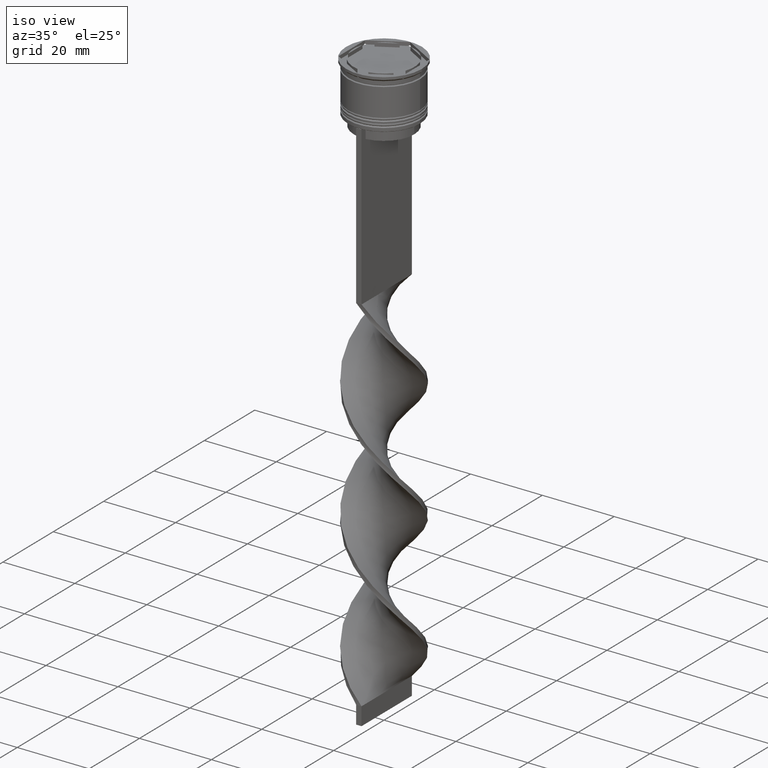
[diagram: clean part render]
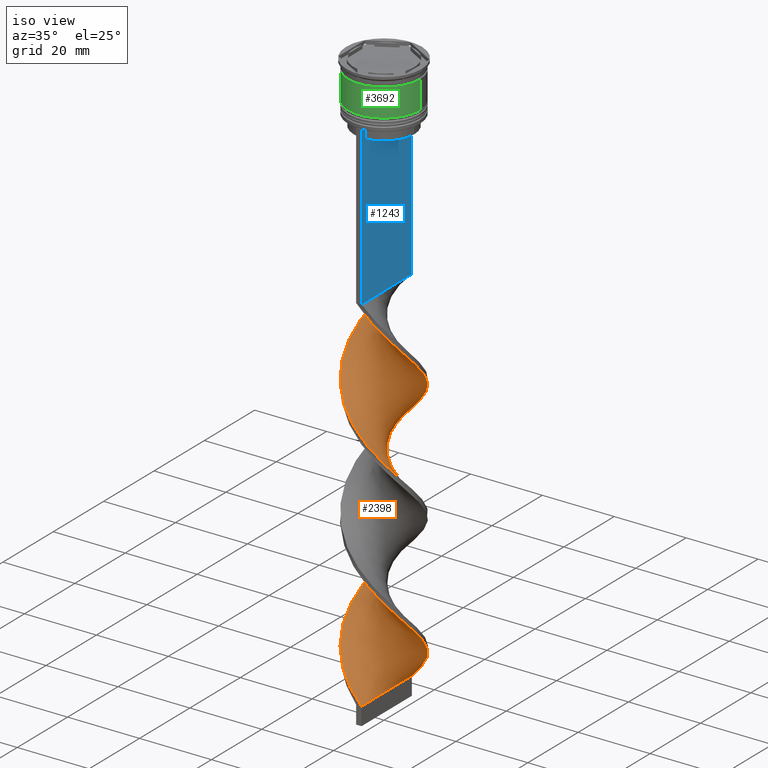
[diagram: same view with three faces highlighted in distinct colors, each labeled with its STEP entity id]
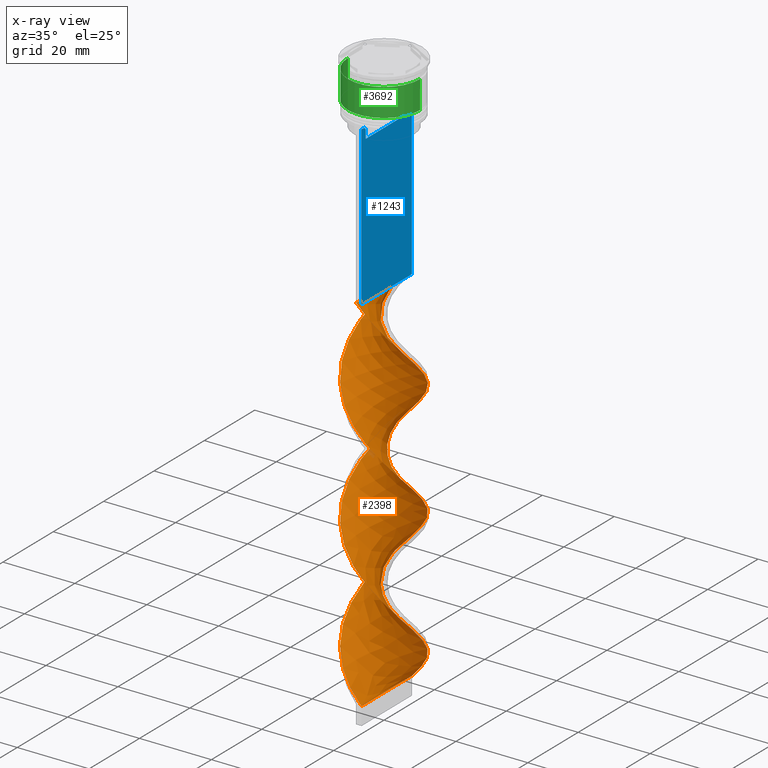
[diagram: x-ray of the same camera — body ghosted, the three highlighted faces saturated]
A machine part, iso view with three faces highlighted in distinct colors.
The next image is the same camera in x-ray (body ghosted, the three faces saturated) — at least one of them is partly hidden behind the body in this view.
Their STEP definitions:

[orange] entity #2398 — the highlighted face is a freeform B-spline surface patch.
#2 = CARTESIAN_POINT ( 'NONE',  ( 5.271089777143521893, 8.531008882968826867, -118.6000000000000085 ) ) ;
#8 = EDGE_LOOP ( 'NONE', ( #3410, #1318, #2871, #3357 ) ) ;
#15 = CARTESIAN_POINT ( 'NONE',  ( 5.271089777143523669, -8.531008882968833973, -132.0666666666666629 ) ) ;
#21 = CARTESIAN_POINT ( 'NONE',  ( 4.752525523989947764, -8.830402094119159884, -96.15555555555556566 ) ) ;
#38 = CARTESIAN_POINT ( 'NONE',  ( -0.3010423526567673758, -10.07882817644925666, -90.54444444444445139 ) ) ;
#40 = CARTESIAN_POINT ( 'NONE',  ( 10.05508279563516716, -0.7541312096726378034, -74.83333333333334281 ) ) ;
#54 = CARTESIAN_POINT ( 'NONE',  ( -8.578000064855068274, -5.300124413240421717, -115.2333333333333343 ) ) ;
#56 = CARTESIAN_POINT ( 'NONE',  ( -4.752525523989951317, 8.830402094119156331, -62.48888888888889426 ) ) ;
#58 = CARTESIAN_POINT ( 'NONE',  ( 6.484615268705946178, 7.649331004530122158, -84.93333333333333712 ) ) ;
#75 = CARTESIAN_POINT ( 'NONE',  ( -6.167734941832652140, 7.976995022925438050, -99.52222222222223991 ) ) ;
#78 = CARTESIAN_POINT ( 'NONE',  ( -9.992147806631781037, 1.352917631973298285, -72.58888888888890278 ) ) ;
#82 = CARTESIAN_POINT ( 'NONE',  ( 9.278802417170329164, -3.803462330970841521, -71.46666666666668277 ) ) ;
#100 = CARTESIAN_POINT ( 'NONE',  ( 10.05508279563516716, -0.7541312096726379144, -142.1666666666666856 ) ) ;
#104 = CARTESIAN_POINT ( 'NONE',  ( 9.678562416828825121, -2.828220898732843658, -139.9222222222222172 ) ) ;
#124 = CARTESIAN_POINT ( 'NONE',  ( -1.345506207627243267, -9.937409775451374827, -156.7555555555555600 ) ) ;
#144 = CARTESIAN_POINT ( 'NONE',  ( -9.035254037844385522, 4.350480947161671885, -136.5555555555555713 ) ) ;
#147 = CARTESIAN_POINT ( 'NONE',  ( 4.374444612454390757, -9.085022743012229895, -130.9444444444444287 ) ) ;
#175 = CARTESIAN_POINT ( 'NONE',  ( -7.691465658176949383, 6.520334342467825728, -101.7666666666666515 ) ) ;
#188 = CARTESIAN_POINT ( 'NONE',  ( 8.578000064855062945, -5.300124413240421717, -101.7666666666666515 ) ) ;
#205 = CARTESIAN_POINT ( 'NONE',  ( -8.879042417511827878, -4.778703763208835831, -146.6555555555555657 ) ) ;
#231 = CARTESIAN_POINT ( 'NONE',  ( 0.7499999999999985567, -9.999999999999998224, -159.0000000000000000 ) ) ;
#240 = CARTESIAN_POINT ( 'NONE',  ( -8.879042417511829655, 4.778703763208845601, -104.0111111111111200 ) ) ;
#248 = CARTESIAN_POINT ( 'NONE',  ( -8.285254037844385522, -5.649519052838325450, -80.44444444444445708 ) ) ;
#263 = CARTESIAN_POINT ( 'NONE',  ( 5.680638183180771073, -8.330891533339586985, -97.27777777777779988 ) ) ;
#283 = CARTESIAN_POINT ( 'NONE',  ( -6.484615268705940849, 7.649331004530118605, -132.0666666666666629 ) ) ;
#296 = CARTESIAN_POINT ( 'NONE',  ( 10.02361530113347854, 0.2993932111503289084, -75.95555555555554861 ) ) ;
#298 = CARTESIAN_POINT ( 'NONE',  ( -2.812727608727946471, 9.625542239224735397, -127.5777777777777828 ) ) ;
#301 = CARTESIAN_POINT ( 'NONE',  ( 7.288592354231114179, 6.967770475720654666, -151.1444444444444457 ) ) ;
#315 = CARTESIAN_POINT ( 'NONE',  ( 2.389970062597715383, -9.795991374453498324, -128.7000000000000171 ) ) ;
#320 = CARTESIAN_POINT ( 'NONE',  ( 9.742327908732745456, -2.376877556528110169, -105.1333333333333400 ) ) ;
#329 = CARTESIAN_POINT ( 'NONE',  ( 2.389970062597715383, -9.795991374453498324, -61.36666666666666003 ) ) ;
#337 = CARTESIAN_POINT ( 'NONE',  ( -2.389970062597714495, -9.795991374453491218, -88.29999999999998295 ) ) ;
#341 = CARTESIAN_POINT ( 'NONE',  ( 4.374444612454390757, -9.085022743012229895, -63.61111111111111427 ) ) ;
#356 = CARTESIAN_POINT ( 'NONE',  ( -9.742327908732752562, -2.376877556528108837, -111.8666666666666742 ) ) ;
#359 = CARTESIAN_POINT ( 'NONE',  ( 5.680638183180779954, 8.330891533339588761, -153.3888888888889142 ) ) ;
#361 = CARTESIAN_POINT ( 'NONE',  ( 7.933296209543092559, 6.133947444480536859, -82.68888888888889710 ) ) ;
#377 = CARTESIAN_POINT ( 'NONE',  ( -8.879042417511829655, 4.778703763208845601, -104.0111111111111057 ) ) ;
#379 = CARTESIAN_POINT ( 'NONE',  ( 3.824412864799128009, -9.329912654898731006, -95.03333333333331723 ) ) ;
#382 = CARTESIAN_POINT ( 'NONE',  ( 5.271089777143523669, -8.531008882968833973, -64.73333333333333428 ) ) ;
#400 = CARTESIAN_POINT ( 'NONE',  ( -1.801042352656763823, 9.921171823550739788, -59.12222222222222712 ) ) ;
#404 = CARTESIAN_POINT ( 'NONE',  ( -6.929600300004799429, -7.248664682696624340, -150.0222222222222115 ) ) ;
#424 = CARTESIAN_POINT ( 'NONE',  ( -10.05508279563516005, -0.7541312096726364711, -74.83333333333334281 ) ) ;
#442 = CARTESIAN_POINT ( 'NONE',  ( 7.691465658176945830, 6.520334342467818622, -115.2333333333333343 ) ) ;
#446 = CARTESIAN_POINT ( 'NONE',  ( 2.389970062597715383, -9.795991374453498324, -128.6999999999999886 ) ) ;
#463 = CARTESIAN_POINT ( 'NONE',  ( -9.866822606231991699, -1.791176054202737955, -143.2888888888889198 ) ) ;
#466 = CARTESIAN_POINT ( 'NONE',  ( -10.05508279563516716, 0.7541312096726390246, -108.5000000000000000 ) ) ;
#471 = CARTESIAN_POINT ( 'NONE',  ( -6.484615268705940849, 7.649331004530118605, -64.73333333333333428 ) ) ;
#486 = CARTESIAN_POINT ( 'NONE',  ( 2.389970062597715827, 9.795991374453491218, -121.9666666666666544 ) ) ;
#498 = CARTESIAN_POINT ( 'NONE',  ( 7.691465658176951159, -6.520334342467825728, -135.4333333333333371 ) ) ;
#501 = CARTESIAN_POINT ( 'NONE',  ( 0.7500000000000011102, 10.00000000000000533, -159.0000000000000000 ) ) ;
#503 = CARTESIAN_POINT ( 'NONE',  ( -2.812727608727946471, 9.625542239224735397, -127.5777777777777828 ) ) ;
#512 = CARTESIAN_POINT ( 'NONE',  ( 9.492508010833715204, 3.400837481082922498, -146.6555555555555657 ) ) ;
#520 = CARTESIAN_POINT ( 'NONE',  ( -3.382207337526053070, -9.440507058732857004, -154.5111111111111200 ) ) ;
#536 = CARTESIAN_POINT ( 'NONE',  ( 0.3010423526567653774, -10.07882817644926376, -126.4555555555555628 ) ) ;
#566 = CARTESIAN_POINT ( 'NONE',  ( 10.05508279563516005, 0.7541312096726352499, -108.5000000000000000 ) ) ;
#567 = EDGE_CURVE ( 'NONE', #2487, #3033, #1538, .T. ) ;
#584 = CARTESIAN_POINT ( 'NONE',  ( -9.866822606231991699, -1.791176054202737955, -143.2888888888889198 ) ) ;
#600 = CARTESIAN_POINT ( 'NONE',  ( 8.879042417511833207, -4.778703763208840272, -70.34444444444444855 ) ) ;
#604 = CARTESIAN_POINT ( 'NONE',  ( 7.933296209543083677, -6.133947444480537747, -100.6444444444444599 ) ) ;
#607 = CARTESIAN_POINT ( 'NONE',  ( 5.680638183180779954, 8.330891533339588761, -153.3888888888889142 ) ) ;
#621 = CARTESIAN_POINT ( 'NONE',  ( 1.345506207627239936, -9.937409775451381932, -127.5777777777777828 ) ) ;
#625 = CARTESIAN_POINT ( 'NONE',  ( -6.929600300004799429, -7.248664682696624340, -82.68888888888889710 ) ) ;
#641 = CARTESIAN_POINT ( 'NONE',  ( -10.05508279563516716, 0.7541312096726390246, -108.5000000000000000 ) ) ;
#644 = CARTESIAN_POINT ( 'NONE',  ( -5.271089777143521005, -8.531008882968826867, -84.93333333333333712 ) ) ;
#646 = CARTESIAN_POINT ( 'NONE',  ( 9.678562416828823345, 2.828220898732833444, -110.7444444444444542 ) ) ;
#655 = CARTESIAN_POINT ( 'NONE',  ( 6.929600300004801205, -7.248664682696631445, -66.97777777777777430 ) ) ;
#661 = CARTESIAN_POINT ( 'NONE',  ( -0.3010423526567608810, 10.07882817644926554, -92.78888888888889142 ) ) ;
#665 = CARTESIAN_POINT ( 'NONE',  ( 0.7499999999999985567, -9.999999999999998224, -91.66666666666667140 ) ) ;
#670 = CARTESIAN_POINT ( 'NONE',  ( 0.3010423526567653774, -10.07882817644926376, -59.12222222222222712 ) ) ;
#685 = CARTESIAN_POINT ( 'NONE',  ( -3.382207337526049962, 9.440507058732864110, -96.15555555555556566 ) ) ;
#690 = CARTESIAN_POINT ( 'NONE',  ( -9.278802417170323835, -3.803462330970837968, -78.20000000000000284 ) ) ;
#693 = CARTESIAN_POINT ( 'NONE',  ( 1.801042352656767598, 9.921171823550746893, -90.54444444444445139 ) ) ;
#709 = CARTESIAN_POINT ( 'NONE',  ( 7.933296209543092559, 6.133947444480536859, -150.0222222222222115 ) ) ;
#712 = FACE_OUTER_BOUND ( 'NONE', #8, .T. ) ;
#728 = CARTESIAN_POINT ( 'NONE',  ( 6.484615268705946178, 7.649331004530122158, -152.2666666666666799 ) ) ;
#732 = CARTESIAN_POINT ( 'NONE',  ( 8.285254037844389075, -5.649519052838332556, -69.22222222222222854 ) ) ;
#753 = CARTESIAN_POINT ( 'NONE',  ( 4.374444612454391645, 9.085022743012221014, -119.7222222222222143 ) ) ;
#774 = CARTESIAN_POINT ( 'NONE',  ( -9.492508010833716980, -3.400837481082918945, -112.9888888888888943 ) ) ;
#787 = CARTESIAN_POINT ( 'NONE',  ( -2.389970062597714495, -9.795991374453491218, -155.6333333333333258 ) ) ;
#794 = CARTESIAN_POINT ( 'NONE',  ( -8.578000064855064721, 5.300124413240420829, -68.10000000000000853 ) ) ;
#810 = CARTESIAN_POINT ( 'NONE',  ( -7.933296209543083677, 6.133947444480536859, -134.3111111111111313 ) ) ;
#814 = CARTESIAN_POINT ( 'NONE',  ( -10.02361530113347143, 0.2993932111503319060, -73.71111111111112280 ) ) ;
#822 = CARTESIAN_POINT ( 'NONE',  ( 9.678562416828826898, -2.828220898732844102, -139.9222222222222172 ) ) ;
#827 = CARTESIAN_POINT ( 'NONE',  ( -9.278802417170323835, -3.803462330970837968, -145.5333333333333599 ) ) ;
#840 = CARTESIAN_POINT ( 'NONE',  ( -5.680638183180781731, -8.330891533339586985, -119.7222222222222143 ) ) ;
#874 = CARTESIAN_POINT ( 'NONE',  ( 8.285254037844389075, 5.649519052838321009, -114.1111111111111285 ) ) ;
#891 = CARTESIAN_POINT ( 'NONE',  ( -9.992147806631781037, 1.352917631973298285, -139.9222222222222172 ) ) ;
#904 = CARTESIAN_POINT ( 'NONE',  ( -9.678562416828821569, -2.828220898732839661, -77.07777777777778283 ) ) ;
#911 = CARTESIAN_POINT ( 'NONE',  ( -0.7499999999999997780, 9.999999999999998224, -58.00000000000000000 ) ) ;
#920 = CARTESIAN_POINT ( 'NONE',  ( -2.812727608727953577, -9.625542239224740726, -123.0888888888888886 ) ) ;
#925 = CARTESIAN_POINT ( 'NONE',  ( 1.345506207627244599, 9.937409775451374827, -123.0888888888888886 ) ) ;
#929 = CARTESIAN_POINT ( 'NONE',  ( 6.484615268705946178, 7.649331004530122158, -152.2666666666666799 ) ) ;
#941 = CARTESIAN_POINT ( 'NONE',  ( 9.992147806631788143, 1.352917631973295620, -77.07777777777778283 ) ) ;
#943 = CARTESIAN_POINT ( 'NONE',  ( -8.879042417511827878, -4.778703763208835831, -79.32222222222222285 ) ) ;
#945 = CARTESIAN_POINT ( 'NONE',  ( 9.866822606231991699, 1.791176054202734624, -109.6222222222222342 ) ) ;
#957 = CARTESIAN_POINT ( 'NONE',  ( 9.742327908732752562, 2.376877556528110169, -78.20000000000000284 ) ) ;
#959 = CARTESIAN_POINT ( 'NONE',  ( 6.484615268705939073, -7.649331004530118605, -98.40000000000001990 ) ) ;
#961 = CARTESIAN_POINT ( 'NONE',  ( -2.389970062597714495, -9.795991374453491218, -155.6333333333333542 ) ) ;
#976 = CARTESIAN_POINT ( 'NONE',  ( 5.680638183180779954, 8.330891533339588761, -86.05555555555557135 ) ) ;
#982 = CARTESIAN_POINT ( 'NONE',  ( -2.812727608727946471, 9.625542239224735397, -60.24444444444444713 ) ) ;
#986 = CARTESIAN_POINT ( 'NONE',  ( -6.167734941832652140, -7.976995022925429168, -151.1444444444444457 ) ) ;
#1004 = CARTESIAN_POINT ( 'NONE',  ( 8.879042417511833207, -4.778703763208840272, -137.6777777777777487 ) ) ;
#1024 = CARTESIAN_POINT ( 'NONE',  ( -7.288592354231107073, 6.967770475720652890, -65.85555555555555429 ) ) ;
#1064 = CARTESIAN_POINT ( 'NONE',  ( -9.992147806631781037, 1.352917631973298285, -139.9222222222222172 ) ) ;
#1067 = CARTESIAN_POINT ( 'NONE',  ( -5.271089777143522781, 8.531008882968833973, -98.40000000000001990 ) ) ;
#1083 = CARTESIAN_POINT ( 'NONE',  ( 3.382207337526058399, 9.440507058732855228, -120.8444444444444485 ) ) ;
#1085 = CARTESIAN_POINT ( 'NONE',  ( -9.035254037844394404, -4.350480947161667444, -114.1111111111111285 ) ) ;
#1098 = CARTESIAN_POINT ( 'NONE',  ( 0.7499999999999985567, -9.999999999999998224, -159.0000000000000000 ) ) ;
#1101 = CARTESIAN_POINT ( 'NONE',  ( -6.167734941832652140, -7.976995022925429168, -151.1444444444444457 ) ) ;
#1114 = CARTESIAN_POINT ( 'NONE',  ( 9.742327908732752562, 2.376877556528110169, -145.5333333333333599 ) ) ;
#1120 = VERTEX_POINT ( 'NONE', #231 ) ;
#1121 = CARTESIAN_POINT ( 'NONE',  ( -8.285254037844385522, -5.649519052838325450, -147.7777777777777715 ) ) ;
#1155 = CARTESIAN_POINT ( 'NONE',  ( -0.7499999999999998890, -10.00000000000000533, -58.00000000000000000 ) ) ;
#1160 = CARTESIAN_POINT ( 'NONE',  ( 6.167734941832657469, 7.976995022925425616, -117.4777777777777885 ) ) ;
#1183 = CARTESIAN_POINT ( 'NONE',  ( 2.389970062597715827, 9.795991374453491218, -121.9666666666666544 ) ) ;
#1199 = CARTESIAN_POINT ( 'NONE',  ( -4.374444612454390757, -9.085022743012221014, -86.05555555555557135 ) ) ;
#1201 = CARTESIAN_POINT ( 'NONE',  ( 3.824412864799132450, 9.329912654898734559, -155.6333333333333542 ) ) ;
#1214 = CARTESIAN_POINT ( 'NONE',  ( -4.752525523989961087, -8.830402094119159884, -120.8444444444444485 ) ) ;
#1218 = CARTESIAN_POINT ( 'NONE',  ( 9.992147806631782814, -1.352917631973301171, -106.2555555555555742 ) ) ;
#1235 = CARTESIAN_POINT ( 'NONE',  ( 6.484615268705946178, 7.649331004530122158, -84.93333333333333712 ) ) ;
#1239 = CARTESIAN_POINT ( 'NONE',  ( 0.7500000000000009992, 10.00000000000000533, -159.0000000000000000 ) ) ;
#1241 = CARTESIAN_POINT ( 'NONE',  ( -10.05508279563516005, -0.7541312096726364711, -74.83333333333332860 ) ) ;
#1255 = CARTESIAN_POINT ( 'NONE',  ( -5.271089777143522781, 8.531008882968833973, -98.40000000000001990 ) ) ;
#1257 = CARTESIAN_POINT ( 'NONE',  ( 7.691465658176951159, -6.520334342467824840, -135.4333333333333371 ) ) ;
#1259 = CARTESIAN_POINT ( 'NONE',  ( -8.285254037844385522, -5.649519052838325450, -147.7777777777777715 ) ) ;
#1272 = CARTESIAN_POINT ( 'NONE',  ( 3.824412864799132450, 9.329912654898734559, -88.29999999999998295 ) ) ;
#1274 = CARTESIAN_POINT ( 'NONE',  ( 7.933296209543083677, -6.133947444480537747, -100.6444444444444599 ) ) ;
#1276 = CARTESIAN_POINT ( 'NONE',  ( 5.680638183180779954, 8.330891533339588761, -86.05555555555557135 ) ) ;
#1292 = CARTESIAN_POINT ( 'NONE',  ( 8.285254037844389075, -5.649519052838332556, -69.22222222222222854 ) ) ;
#1296 = CARTESIAN_POINT ( 'NONE',  ( -1.345506207627243267, -9.937409775451374827, -89.42222222222223138 ) ) ;
#1301 = CARTESIAN_POINT ( 'NONE',  ( -3.382207337526053070, -9.440507058732857004, -154.5111111111111200 ) ) ;
#1318 = ORIENTED_EDGE ( 'NONE', *, *, #2327, .T. ) ;
#1319 = CARTESIAN_POINT ( 'NONE',  ( -9.492508010833708099, 3.400837481082922498, -70.34444444444443434 ) ) ;
#1323 = CARTESIAN_POINT ( 'NONE',  ( -8.879042417511827878, -4.778703763208834943, -146.6555555555555657 ) ) ;
#1336 = CARTESIAN_POINT ( 'NONE',  ( -0.3010423526567673758, -10.07882817644925666, -157.8777777777777942 ) ) ;
#1339 = CARTESIAN_POINT ( 'NONE',  ( 0.7499999999999985567, -9.999999999999998224, -159.0000000000000000 ) ) ;
#1359 = CARTESIAN_POINT ( 'NONE',  ( -2.389970062597714495, 9.795991374453500100, -95.03333333333331723 ) ) ;
#1381 = CARTESIAN_POINT ( 'NONE',  ( -10.05508279563516005, -0.7541312096726364711, -142.1666666666666856 ) ) ;
#1384 = CARTESIAN_POINT ( 'NONE',  ( -1.345506207627237938, 9.937409775451381932, -93.91111111111111143 ) ) ;
#1399 = CARTESIAN_POINT ( 'NONE',  ( 9.678562416828823345, 2.828220898732833444, -110.7444444444444542 ) ) ;
#1402 = CARTESIAN_POINT ( 'NONE',  ( -9.492508010833709875, 3.400837481082922498, -70.34444444444444855 ) ) ;
#1403 = CARTESIAN_POINT ( 'NONE',  ( 0.7500000000000011102, 10.00000000000000533, -159.0000000000000000 ) ) ;
#1415 = CARTESIAN_POINT ( 'NONE',  ( -3.824412864799129341, 9.329912654898729230, -128.6999999999999886 ) ) ;
#1443 = CARTESIAN_POINT ( 'NONE',  ( 2.812727608727952688, 9.625542239224740726, -156.7555555555555600 ) ) ;
#1448 = CARTESIAN_POINT ( 'NONE',  ( -9.678562416828825121, 2.828220898732847211, -106.2555555555555742 ) ) ;
#1454 = CARTESIAN_POINT ( 'NONE',  ( -8.879042417511827878, -4.778703763208834943, -79.32222222222222285 ) ) ;
#1468 = CARTESIAN_POINT ( 'NONE',  ( -8.578000064855064721, 5.300124413240420829, -135.4333333333333371 ) ) ;
#1489 = CARTESIAN_POINT ( 'NONE',  ( 9.492508010833706322, -3.400837481082927827, -104.0111111111111057 ) ) ;
#1491 = CARTESIAN_POINT ( 'NONE',  ( 9.035254037844392627, 4.350480947161671885, -147.7777777777777715 ) ) ;
#1503 = CARTESIAN_POINT ( 'NONE',  ( 9.678562416828826898, -2.828220898732844102, -72.58888888888890278 ) ) ;
#1507 = CARTESIAN_POINT ( 'NONE',  ( -1.345506207627243267, -9.937409775451374827, -89.42222222222223138 ) ) ;
#1522 = CARTESIAN_POINT ( 'NONE',  ( 3.382207337526053514, -9.440507058732864110, -129.8222222222222229 ) ) ;
#1526 = CARTESIAN_POINT ( 'NONE',  ( -0.3010423526567673758, -10.07882817644925666, -90.54444444444445139 ) ) ;
#1527 = B_SPLINE_CURVE_WITH_KNOTS ( 'NONE', 3,
 ( #501, #3818, #2583, #1098 ),
 .UNSPECIFIED., .F., .F.,
 ( 4, 4 ),
 ( 0.000000000000000000, 1.000000000000000000 ),
 .UNSPECIFIED. ) ;
#1538 =( BOUNDED_CURVE ( )  B_SPLINE_CURVE ( 2, ( #3653, #1834, #3057, #329, #2473, #2165, #3674, #3371, #655, #1856, #1292, #600, #1544, #1503, #3721, #3399, #296, #941, #957, #2477, #3105, #1822, #3314, #3356, #1235, #976, #1585, #1272, #2195, #1863, #2524, #661, #3377, #3087, #685, #2773, #1255, #75, #3678, #1884, #2130, #377, #3043, #3025, #2172, #641, #1840, #3695, #356, #2815, #2438, #54, #1802, #1566, #2732, #3933, #1214, #3633, #920, #2791, #2499, #3339, #621, #315, #1522, #2750, #15, #2460, #2151, #498, #3761, #2314, #1903, #822, #2235, #100, #3516, #2634, #1114, #512, #1491, #2058, #2115, #301, #929, #607, #2446, #1201, #1443, #2424, #2721 ),
 .UNSPECIFIED., .F., .T. ) 
 B_SPLINE_CURVE_WITH_KNOTS ( ( 3, 2, 2, 2, 2, 2, 2, 2, 2, 2, 2, 2, 2, 2, 2, 2, 2, 2, 2, 2, 2, 2, 2, 2, 2, 2, 2, 2, 2, 2, 2, 2, 2, 2, 2, 2, 2, 2, 2, 2, 2, 2, 2, 2, 2, 3 ),
 ( 0.000000000000000000, 0.01666666666666666644, 0.03333333333333333287, 0.05000000000000000971, 0.06666666666666666574, 0.08333333333333332871, 0.1000000000000000194, 0.1166666666666666546, 0.1333333333333333315, 0.1499999999999999944, 0.1666666666666666574, 0.1833333333333333204, 0.2000000000000000389, 0.2166666666666666741, 0.2333333333333333093, 0.2500000000000000000, 0.2666666666666666630, 0.2833333333333333259, 0.2999999999999999889, 0.3166666666666666519, 0.3333333333333333148, 0.3499999999999999223, 0.3666666666666666408, 0.3833333333333333592, 0.4000000000000000777, 0.4166666666666666852, 0.4333333333333333481, 0.4500000000000000111, 0.4666666666666666186, 0.4833333333333333370, 0.5000000000000000000, 0.5166666666666667185, 0.5333333333333333259, 0.5500000000000000444, 0.5666666666666666519, 0.5833333333333333703, 0.5999999999999999778, 0.6166666666666666963, 0.6333333333333333037, 0.6500000000000000222, 0.6666666666666666297, 0.6833333333333332371, 0.6999999999999998446, 0.7166666666666666741, 0.7333333333333332815, 0.7500000000000000000 ),
 .UNSPECIFIED. ) 
 CURVE ( )  GEOMETRIC_REPRESENTATION_ITEM ( )  RATIONAL_B_SPLINE_CURVE ( ( 1.000000000000000000, 0.9945218953682732899, 1.000000000000000000, 0.9945218953682732899, 1.000000000000000000, 0.9945218953682732899, 1.000000000000000000, 0.9945218953682732899, 1.000000000000000000, 0.9945218953682732899, 1.000000000000000000, 0.9945218953682732899, 1.000000000000000000, 0.9945218953682732899, 1.000000000000000000, 0.9945218953682732899, 1.000000000000000000, 0.9945218953682732899, 1.000000000000000000, 0.9945218953682732899, 1.000000000000000000, 0.9945218953682732899, 1.000000000000000000, 0.9945218953682732899, 1.000000000000000000, 0.9945218953682732899, 1.000000000000000000, 0.9945218953682732899, 1.000000000000000000, 0.9945218953682732899, 1.000000000000000000, 0.9945218953682732899, 1.000000000000000000, 0.9945218953682732899, 1.000000000000000000, 0.9945218953682732899, 1.000000000000000000, 0.9945218953682732899, 1.000000000000000000, 0.9945218953682732899, 1.000000000000000000, 0.9945218953682732899, 1.000000000000000000, 0.9945218953682732899, 1.000000000000000000, 0.9945218953682732899, 1.000000000000000000, 0.9945218953682732899, 1.000000000000000000, 0.9945218953682732899, 1.000000000000000000, 0.9945218953682732899, 1.000000000000000000, 0.9945218953682732899, 1.000000000000000000, 0.9945218953682732899, 1.000000000000000000, 0.9945218953682732899, 1.000000000000000000, 0.9945218953682732899, 1.000000000000000000, 0.9945218953682732899, 1.000000000000000000, 0.9945218953682732899, 1.000000000000000000, 0.9945218953682732899, 1.000000000000000000, 0.9945218953682732899, 1.000000000000000000, 0.9945218953682732899, 1.000000000000000000, 0.9945218953682732899, 1.000000000000000000, 0.9945218953682732899, 1.000000000000000000, 0.9945218953682732899, 1.000000000000000000, 0.9945218953682732899, 1.000000000000000000, 0.9945218953682732899, 1.000000000000000000, 0.9945218953682732899, 1.000000000000000000, 0.9945218953682732899, 1.000000000000000000, 0.9945218953682732899, 1.000000000000000000, 0.9945218953682732899, 1.000000000000000000, 0.9945218953682732899, 1.000000000000000000 ) ) 
 REPRESENTATION_ITEM ( '' )  );
#1544 = CARTESIAN_POINT ( 'NONE',  ( 9.278802417170329164, -3.803462330970841521, -71.46666666666668277 ) ) ;
#1548 = CARTESIAN_POINT ( 'NONE',  ( 9.992147806631789919, 1.352917631973296064, -144.4111111111111541 ) ) ;
#1550 = CARTESIAN_POINT ( 'NONE',  ( 7.691465658176951159, -6.520334342467824840, -68.10000000000002274 ) ) ;
#1566 = CARTESIAN_POINT ( 'NONE',  ( -7.288592354231117731, -6.967770475720650225, -117.4777777777777885 ) ) ;
#1568 = CARTESIAN_POINT ( 'NONE',  ( 2.812727608727952244, 9.625542239224740726, -156.7555555555555600 ) ) ;
#1570 = CARTESIAN_POINT ( 'NONE',  ( 7.288592354231113291, 6.967770475720654666, -83.81111111111111711 ) ) ;
#1585 = CARTESIAN_POINT ( 'NONE',  ( 4.752525523989956646, 8.830402094119161660, -87.17777777777779136 ) ) ;
#1588 = CARTESIAN_POINT ( 'NONE',  ( -0.7499999999999997780, 9.999999999999998224, -58.00000000000000000 ) ) ;
#1591 = CARTESIAN_POINT ( 'NONE',  ( -0.3010423526567609920, 10.07882817644926554, -92.78888888888889142 ) ) ;
#1611 = CARTESIAN_POINT ( 'NONE',  ( -9.035254037844385522, 4.350480947161671885, -69.22222222222222854 ) ) ;
#1615 = CARTESIAN_POINT ( 'NONE',  ( -7.691465658176945830, -6.520334342467819511, -148.8999999999999773 ) ) ;
#1629 = CARTESIAN_POINT ( 'NONE',  ( 9.035254037844392627, 4.350480947161671885, -147.7777777777777715 ) ) ;
#1632 = CARTESIAN_POINT ( 'NONE',  ( 6.929600300004801205, -7.248664682696631445, -66.97777777777777430 ) ) ;
#1646 = CARTESIAN_POINT ( 'NONE',  ( -5.680638183180772849, 8.330891533339585209, -130.9444444444444287 ) ) ;
#1650 = CARTESIAN_POINT ( 'NONE',  ( -2.812727608727953577, -9.625542239224740726, -123.0888888888888886 ) ) ;
#1674 = CARTESIAN_POINT ( 'NONE',  ( -9.742327908732752562, -2.376877556528108837, -111.8666666666666742 ) ) ;
#1679 = CARTESIAN_POINT ( 'NONE',  ( -0.7499999999999997780, 9.999999999999998224, -58.00000000000000000 ) ) ;
#1694 = CARTESIAN_POINT ( 'NONE',  ( 9.742327908732745456, -2.376877556528110169, -105.1333333333333400 ) ) ;
#1708 = CARTESIAN_POINT ( 'NONE',  ( 9.866822606231991699, 1.791176054202734624, -109.6222222222222342 ) ) ;
#1711 = LINE ( 'NONE', #3546, #2842 ) ;
#1723 = CARTESIAN_POINT ( 'NONE',  ( -10.02361530113347143, 0.2993932111503319060, -141.0444444444444514 ) ) ;
#1742 = CARTESIAN_POINT ( 'NONE',  ( -9.866822606231997028, 1.791176054202747503, -107.3777777777777942 ) ) ;
#1767 = CARTESIAN_POINT ( 'NONE',  ( -7.288592354231107073, 6.967770475720652890, -133.1888888888889255 ) ) ;
#1783 = CARTESIAN_POINT ( 'NONE',  ( -9.678562416828821569, -2.828220898732839661, -144.4111111111111256 ) ) ;
#1802 = CARTESIAN_POINT ( 'NONE',  ( -7.933296209543092559, -6.133947444480535971, -116.3555555555555685 ) ) ;
#1804 = CARTESIAN_POINT ( 'NONE',  ( 9.035254037844383745, -4.350480947161674550, -102.8888888888888857 ) ) ;
#1816 =( BOUNDED_SURFACE ( )  B_SPLINE_SURFACE ( 1, 2, ( 
 ( #2241, #670, #3068, #3445, #2796, #341, #382, #2203, #1632, #1550, #732, #2867, #82, #2222, #2778, #40, #3682, #2177, #1909, #3133, #1869, #3092, #361, #1570, #58, #1276, #2504, #3701, #3406, #693, #3111, #1591, #1384, #1359, #2590, #2285, #1067, #3258, #3790, #175, #3487, #240, #2905, #1448, #1742, #466, #3507, #3808, #1674, #774, #1085, #2610, #3193, #2304, #1976, #840, #1953, #2045, #1650, #2674, #2973, #536, #3175, #446, #2885, #147, #2776, #3130, #2529, #1257, #3724, #1004, #3090, #104, #2219, #3402, #3064, #1548, #1929, #3443, #1629, #3421, #709, #2863, #728, #359, #2846, #1905, #1568, #3698, #1239 ),
 ( #1588, #400, #982, #2819, #56, #2546, #2199, #1024, #2480, #3741, #1611, #1319, #2237, #78, #3155, #424, #2463, #3661, #690, #943, #2154, #3380, #2502, #3359, #644, #1887, #1843, #337, #1296, #38, #665, #3108, #2794, #379, #3680, #1867, #959, #2175, #1274, #188, #3787, #3209, #1694, #3762, #2923, #3806, #1708, #1399, #2642, #2624, #2258, #442, #3467, #2032, #2607, #753, #1083, #486, #2340, #1996, #2881, #2015, #503, #1415, #3188, #1646, #3838, #3228, #810, #3822, #144, #3541, #3525, #1064, #1723, #1381, #463, #2939, #827, #205, #1121, #2302, #3503, #1101, #3243, #2321, #520, #787, #124, #1336, #2564 ) ),
 .UNSPECIFIED., .F., .F., .F. ) 
 B_SPLINE_SURFACE_WITH_KNOTS ( ( 2, 2 ),
 ( 3, 2, 2, 2, 2, 2, 2, 2, 2, 2, 2, 2, 2, 2, 2, 2, 2, 2, 2, 2, 2, 2, 2, 2, 2, 2, 2, 2, 2, 2, 2, 2, 2, 2, 2, 2, 2, 2, 2, 2, 2, 2, 2, 2, 2, 3 ),
 ( 0.000000000000000000, 1.000000000000000000 ),
 ( 0.000000000000000000, 0.01666666666666666644, 0.03333333333333333287, 0.05000000000000000278, 0.06666666666666666574, 0.08333333333333332871, 0.1000000000000000056, 0.1166666666666666685, 0.1333333333333333315, 0.1499999999999999944, 0.1666666666666666574, 0.1833333333333333204, 0.2000000000000000111, 0.2166666666666666741, 0.2333333333333333370, 0.2500000000000000000, 0.2666666666666666630, 0.2833333333333333259, 0.2999999999999999889, 0.3166666666666666519, 0.3333333333333333148, 0.3499999999999999778, 0.3666666666666666408, 0.3833333333333333592, 0.4000000000000000222, 0.4166666666666666852, 0.4333333333333333481, 0.4500000000000000111, 0.4666666666666666741, 0.4833333333333333370, 0.5000000000000000000, 0.5166666666666667185, 0.5333333333333333259, 0.5500000000000000444, 0.5666666666666666519, 0.5833333333333333703, 0.5999999999999999778, 0.6166666666666666963, 0.6333333333333333037, 0.6500000000000000222, 0.6666666666666666297, 0.6833333333333333481, 0.6999999999999999556, 0.7166666666666666741, 0.7333333333333332815, 0.7500000000000000000 ),
 .UNSPECIFIED. ) 
 GEOMETRIC_REPRESENTATION_ITEM ( )  RATIONAL_B_SPLINE_SURFACE ( (
 ( 1.000000000000000000, 0.9945218953682732899, 1.000000000000000000, 0.9945218953682732899, 1.000000000000000000, 0.9945218953682732899, 1.000000000000000000, 0.9945218953682732899, 1.000000000000000000, 0.9945218953682732899, 1.000000000000000000, 0.9945218953682732899, 1.000000000000000000, 0.9945218953682732899, 1.000000000000000000, 0.9945218953682732899, 1.000000000000000000, 0.9945218953682732899, 1.000000000000000000, 0.9945218953682732899, 1.000000000000000000, 0.9945218953682732899, 1.000000000000000000, 0.9945218953682732899, 1.000000000000000000, 0.9945218953682732899, 1.000000000000000000, 0.9945218953682732899, 1.000000000000000000, 0.9945218953682732899, 1.000000000000000000, 0.9945218953682732899, 1.000000000000000000, 0.9945218953682732899, 1.000000000000000000, 0.9945218953682732899, 1.000000000000000000, 0.9945218953682732899, 1.000000000000000000, 0.9945218953682732899, 1.000000000000000000, 0.9945218953682732899, 1.000000000000000000, 0.9945218953682732899, 1.000000000000000000, 0.9945218953682732899, 1.000000000000000000, 0.9945218953682732899, 1.000000000000000000, 0.9945218953682732899, 1.000000000000000000, 0.9945218953682732899, 1.000000000000000000, 0.9945218953682732899, 1.000000000000000000, 0.9945218953682732899, 1.000000000000000000, 0.9945218953682732899, 1.000000000000000000, 0.9945218953682732899, 1.000000000000000000, 0.9945218953682732899, 1.000000000000000000, 0.9945218953682732899, 1.000000000000000000, 0.9945218953682732899, 1.000000000000000000, 0.9945218953682732899, 1.000000000000000000, 0.9945218953682732899, 1.000000000000000000, 0.9945218953682732899, 1.000000000000000000, 0.9945218953682732899, 1.000000000000000000, 0.9945218953682732899, 1.000000000000000000, 0.9945218953682732899, 1.000000000000000000, 0.9945218953682732899, 1.000000000000000000, 0.9945218953682732899, 1.000000000000000000, 0.9945218953682732899, 1.000000000000000000, 0.9945218953682732899, 1.000000000000000000, 0.9945218953682732899, 1.000000000000000000, 0.9945218953682732899, 1.000000000000000000),
 ( 1.000000000000000000, 0.9945218953682732899, 1.000000000000000000, 0.9945218953682732899, 1.000000000000000000, 0.9945218953682732899, 1.000000000000000000, 0.9945218953682732899, 1.000000000000000000, 0.9945218953682732899, 1.000000000000000000, 0.9945218953682732899, 1.000000000000000000, 0.9945218953682732899, 1.000000000000000000, 0.9945218953682732899, 1.000000000000000000, 0.9945218953682732899, 1.000000000000000000, 0.9945218953682732899, 1.000000000000000000, 0.9945218953682732899, 1.000000000000000000, 0.9945218953682732899, 1.000000000000000000, 0.9945218953682732899, 1.000000000000000000, 0.9945218953682732899, 1.000000000000000000, 0.9945218953682732899, 1.000000000000000000, 0.9945218953682732899, 1.000000000000000000, 0.9945218953682732899, 1.000000000000000000, 0.9945218953682732899, 1.000000000000000000, 0.9945218953682732899, 1.000000000000000000, 0.9945218953682732899, 1.000000000000000000, 0.9945218953682732899, 1.000000000000000000, 0.9945218953682732899, 1.000000000000000000, 0.9945218953682732899, 1.000000000000000000, 0.9945218953682732899, 1.000000000000000000, 0.9945218953682732899, 1.000000000000000000, 0.9945218953682732899, 1.000000000000000000, 0.9945218953682732899, 1.000000000000000000, 0.9945218953682732899, 1.000000000000000000, 0.9945218953682732899, 1.000000000000000000, 0.9945218953682732899, 1.000000000000000000, 0.9945218953682732899, 1.000000000000000000, 0.9945218953682732899, 1.000000000000000000, 0.9945218953682732899, 1.000000000000000000, 0.9945218953682732899, 1.000000000000000000, 0.9945218953682732899, 1.000000000000000000, 0.9945218953682732899, 1.000000000000000000, 0.9945218953682732899, 1.000000000000000000, 0.9945218953682732899, 1.000000000000000000, 0.9945218953682732899, 1.000000000000000000, 0.9945218953682732899, 1.000000000000000000, 0.9945218953682732899, 1.000000000000000000, 0.9945218953682732899, 1.000000000000000000, 0.9945218953682732899, 1.000000000000000000, 0.9945218953682732899, 1.000000000000000000, 0.9945218953682732899, 1.000000000000000000) ) ) 
 REPRESENTATION_ITEM ( '' )  SURFACE ( )  );
#1822 = CARTESIAN_POINT ( 'NONE',  ( 8.578000064855070050, 5.300124413240422605, -81.56666666666666288 ) ) ;
#1826 = CARTESIAN_POINT ( 'NONE',  ( 7.288592354231104409, -6.967770475720653778, -99.52222222222223991 ) ) ;
#1834 = CARTESIAN_POINT ( 'NONE',  ( 0.3010423526567652663, -10.07882817644926376, -59.12222222222222712 ) ) ;
#1840 = CARTESIAN_POINT ( 'NONE',  ( -10.02361530113347854, -0.2993932111503254112, -109.6222222222222342 ) ) ;
#1843 = CARTESIAN_POINT ( 'NONE',  ( -3.382207337526053070, -9.440507058732857004, -87.17777777777779136 ) ) ;
#1846 = CARTESIAN_POINT ( 'NONE',  ( 6.484615268705939073, -7.649331004530118605, -98.40000000000001990 ) ) ;
#1856 = CARTESIAN_POINT ( 'NONE',  ( 7.691465658176951159, -6.520334342467825728, -68.10000000000000853 ) ) ;
#1863 = CARTESIAN_POINT ( 'NONE',  ( 1.801042352656767820, 9.921171823550748670, -90.54444444444445139 ) ) ;
#1867 = CARTESIAN_POINT ( 'NONE',  ( 5.680638183180771073, -8.330891533339586985, -97.27777777777778567 ) ) ;
#1869 = CARTESIAN_POINT ( 'NONE',  ( 9.035254037844392627, 4.350480947161671885, -80.44444444444445708 ) ) ;
#1884 = CARTESIAN_POINT ( 'NONE',  ( -7.691465658176949383, 6.520334342467825728, -101.7666666666666515 ) ) ;
#1887 = CARTESIAN_POINT ( 'NONE',  ( -4.374444612454390757, -9.085022743012221014, -86.05555555555557135 ) ) ;
#1903 = CARTESIAN_POINT ( 'NONE',  ( 9.278802417170329164, -3.803462330970841521, -138.8000000000000114 ) ) ;
#1905 = CARTESIAN_POINT ( 'NONE',  ( 3.824412864799132450, 9.329912654898736335, -155.6333333333333258 ) ) ;
#1909 = CARTESIAN_POINT ( 'NONE',  ( 9.742327908732752562, 2.376877556528110169, -78.20000000000000284 ) ) ;
#1929 = CARTESIAN_POINT ( 'NONE',  ( 9.742327908732752562, 2.376877556528110169, -145.5333333333333599 ) ) ;
#1933 = CARTESIAN_POINT ( 'NONE',  ( -5.271089777143521005, -8.531008882968826867, -152.2666666666666799 ) ) ;
#1953 = CARTESIAN_POINT ( 'NONE',  ( -4.752525523989961087, -8.830402094119159884, -120.8444444444444485 ) ) ;
#1955 =( BOUNDED_CURVE ( )  B_SPLINE_CURVE ( 2, ( #1679, #1982, #3793, #3826, #3197, #2329, #471, #2612, #3810, #794, #2002, #1402, #2628, #3531, #814, #1241, #3342, #904, #2134, #1454, #248, #3663, #625, #3048, #3919, #1199, #2736, #2465, #1507, #1526, #2422, #2110, #2156, #3620, #21, #263, #1846, #1826, #604, #2385, #1804, #1489, #320, #1218, #2756, #566, #945, #646, #3028, #2682, #874, #3361, #3882, #1160, #2, #2443, #3640, #1183, #925, #3589, #3319, #2076, #298, #2719, #3286, #3606, #283, #1767, #2995, #1468, #2701, #3902, #2409, #891, #2093, #3301, #584, #1783, #3010, #1323, #1259, #1615, #404, #986, #1933, #2849, #1301, #961, #3383, #3764, #1339 ),
 .UNSPECIFIED., .F., .T. ) 
 B_SPLINE_CURVE_WITH_KNOTS ( ( 3, 2, 2, 2, 2, 2, 2, 2, 2, 2, 2, 2, 2, 2, 2, 2, 2, 2, 2, 2, 2, 2, 2, 2, 2, 2, 2, 2, 2, 2, 2, 2, 2, 2, 2, 2, 2, 2, 2, 2, 2, 2, 2, 2, 2, 3 ),
 ( 0.000000000000000000, 0.01666666666666666644, 0.03333333333333333287, 0.05000000000000000971, 0.06666666666666666574, 0.08333333333333332871, 0.1000000000000000194, 0.1166666666666666546, 0.1333333333333333315, 0.1499999999999999944, 0.1666666666666666574, 0.1833333333333333204, 0.2000000000000000389, 0.2166666666666666741, 0.2333333333333333093, 0.2500000000000000000, 0.2666666666666666630, 0.2833333333333333259, 0.2999999999999999889, 0.3166666666666666519, 0.3333333333333333148, 0.3499999999999999223, 0.3666666666666666408, 0.3833333333333333592, 0.4000000000000000777, 0.4166666666666666852, 0.4333333333333333481, 0.4500000000000000111, 0.4666666666666666186, 0.4833333333333333370, 0.5000000000000000000, 0.5166666666666667185, 0.5333333333333333259, 0.5500000000000000444, 0.5666666666666666519, 0.5833333333333333703, 0.5999999999999999778, 0.6166666666666666963, 0.6333333333333333037, 0.6500000000000000222, 0.6666666666666666297, 0.6833333333333332371, 0.6999999999999998446, 0.7166666666666666741, 0.7333333333333332815, 0.7500000000000000000 ),
 .UNSPECIFIED. ) 
 CURVE ( )  GEOMETRIC_REPRESENTATION_ITEM ( )  RATIONAL_B_SPLINE_CURVE ( ( 1.000000000000000000, 0.9945218953682732899, 1.000000000000000000, 0.9945218953682732899, 1.000000000000000000, 0.9945218953682732899, 1.000000000000000000, 0.9945218953682732899, 1.000000000000000000, 0.9945218953682732899, 1.000000000000000000, 0.9945218953682732899, 1.000000000000000000, 0.9945218953682732899, 1.000000000000000000, 0.9945218953682732899, 1.000000000000000000, 0.9945218953682732899, 1.000000000000000000, 0.9945218953682732899, 1.000000000000000000, 0.9945218953682732899, 1.000000000000000000, 0.9945218953682732899, 1.000000000000000000, 0.9945218953682732899, 1.000000000000000000, 0.9945218953682732899, 1.000000000000000000, 0.9945218953682732899, 1.000000000000000000, 0.9945218953682732899, 1.000000000000000000, 0.9945218953682732899, 1.000000000000000000, 0.9945218953682732899, 1.000000000000000000, 0.9945218953682732899, 1.000000000000000000, 0.9945218953682732899, 1.000000000000000000, 0.9945218953682732899, 1.000000000000000000, 0.9945218953682732899, 1.000000000000000000, 0.9945218953682732899, 1.000000000000000000, 0.9945218953682732899, 1.000000000000000000, 0.9945218953682732899, 1.000000000000000000, 0.9945218953682732899, 1.000000000000000000, 0.9945218953682732899, 1.000000000000000000, 0.9945218953682732899, 1.000000000000000000, 0.9945218953682732899, 1.000000000000000000, 0.9945218953682732899, 1.000000000000000000, 0.9945218953682732899, 1.000000000000000000, 0.9945218953682732899, 1.000000000000000000, 0.9945218953682732899, 1.000000000000000000, 0.9945218953682732899, 1.000000000000000000, 0.9945218953682732899, 1.000000000000000000, 0.9945218953682732899, 1.000000000000000000, 0.9945218953682732899, 1.000000000000000000, 0.9945218953682732899, 1.000000000000000000, 0.9945218953682732899, 1.000000000000000000, 0.9945218953682732899, 1.000000000000000000, 0.9945218953682732899, 1.000000000000000000, 0.9945218953682732899, 1.000000000000000000, 0.9945218953682732899, 1.000000000000000000, 0.9945218953682732899, 1.000000000000000000, 0.9945218953682732899, 1.000000000000000000 ) ) 
 REPRESENTATION_ITEM ( '' )  );
#1976 = CARTESIAN_POINT ( 'NONE',  ( -6.484615268705947067, -7.649331004530122158, -118.6000000000000085 ) ) ;
#1982 = CARTESIAN_POINT ( 'NONE',  ( -1.801042352656763823, 9.921171823550741564, -59.12222222222222712 ) ) ;
#1996 = CARTESIAN_POINT ( 'NONE',  ( 0.3010423526567729824, 10.07882817644925666, -124.2111111111111370 ) ) ;
#2002 = CARTESIAN_POINT ( 'NONE',  ( -9.035254037844385522, 4.350480947161671885, -69.22222222222222854 ) ) ;
#2015 = CARTESIAN_POINT ( 'NONE',  ( -1.801042352656763823, 9.921171823550739788, -126.4555555555555628 ) ) ;
#2018 = DIRECTION ( 'NONE',  ( 0.000000000000000000, 1.000000000000000000, 0.000000000000000000 ) ) ;
#2032 = CARTESIAN_POINT ( 'NONE',  ( 6.167734941832656581, 7.976995022925425616, -117.4777777777777885 ) ) ;
#2045 = CARTESIAN_POINT ( 'NONE',  ( -3.824412864799134226, -9.329912654898736335, -121.9666666666666544 ) ) ;
#2058 = CARTESIAN_POINT ( 'NONE',  ( 8.578000064855070050, 5.300124413240422605, -148.8999999999999773 ) ) ;
#2076 = CARTESIAN_POINT ( 'NONE',  ( -1.801042352656763823, 9.921171823550741564, -126.4555555555555770 ) ) ;
#2093 = CARTESIAN_POINT ( 'NONE',  ( -10.02361530113347143, 0.2993932111503319060, -141.0444444444444514 ) ) ;
#2110 = CARTESIAN_POINT ( 'NONE',  ( 1.801042352656760270, -9.921171823550743341, -92.78888888888889142 ) ) ;
#2115 = CARTESIAN_POINT ( 'NONE',  ( 7.933296209543092559, 6.133947444480536859, -150.0222222222222115 ) ) ;
#2130 = CARTESIAN_POINT ( 'NONE',  ( -8.285254037844389075, 5.649519052838336108, -102.8888888888888857 ) ) ;
#2134 = CARTESIAN_POINT ( 'NONE',  ( -9.278802417170323835, -3.803462330970837968, -78.20000000000000284 ) ) ;
#2151 = CARTESIAN_POINT ( 'NONE',  ( 6.929600300004801205, -7.248664682696631445, -134.3111111111111313 ) ) ;
#2154 = CARTESIAN_POINT ( 'NONE',  ( -8.285254037844385522, -5.649519052838325450, -80.44444444444445708 ) ) ;
#2156 = CARTESIAN_POINT ( 'NONE',  ( 2.812727608727944251, -9.625542239224735397, -93.91111111111111143 ) ) ;
#2165 = CARTESIAN_POINT ( 'NONE',  ( 4.374444612454390757, -9.085022743012229895, -63.61111111111112137 ) ) ;
#2172 = CARTESIAN_POINT ( 'NONE',  ( -9.866822606231997028, 1.791176054202747725, -107.3777777777777942 ) ) ;
#2175 = CARTESIAN_POINT ( 'NONE',  ( 7.288592354231104409, -6.967770475720653778, -99.52222222222223991 ) ) ;
#2177 = CARTESIAN_POINT ( 'NONE',  ( 9.992147806631789919, 1.352917631973296064, -77.07777777777778283 ) ) ;
#2195 = CARTESIAN_POINT ( 'NONE',  ( 2.812727608727952688, 9.625542239224740726, -89.42222222222223138 ) ) ;
#2199 = CARTESIAN_POINT ( 'NONE',  ( -6.484615268705940849, 7.649331004530118605, -64.73333333333333428 ) ) ;
#2203 = CARTESIAN_POINT ( 'NONE',  ( 6.167734941832653028, -7.976995022925438050, -65.85555555555555429 ) ) ;
#2219 = CARTESIAN_POINT ( 'NONE',  ( 9.866822606231998805, -1.791176054202741952, -141.0444444444444514 ) ) ;
#2222 = CARTESIAN_POINT ( 'NONE',  ( 9.678562416828825121, -2.828220898732843658, -72.58888888888890278 ) ) ;
#2235 = CARTESIAN_POINT ( 'NONE',  ( 9.866822606231998805, -1.791176054202742174, -141.0444444444444514 ) ) ;
#2237 = CARTESIAN_POINT ( 'NONE',  ( -9.742327908732745456, 2.376877556528109725, -71.46666666666668277 ) ) ;
#2241 = CARTESIAN_POINT ( 'NONE',  ( -0.7499999999999997780, -10.00000000000000533, -58.00000000000000000 ) ) ;
#2258 = CARTESIAN_POINT ( 'NONE',  ( 8.285254037844389075, 5.649519052838321009, -114.1111111111111285 ) ) ;
#2285 = CARTESIAN_POINT ( 'NONE',  ( -4.374444612454388981, 9.085022743012229895, -97.27777777777778567 ) ) ;
#2301 = EDGE_CURVE ( 'NONE', #2487, #3716, #1711, .T. ) ;
#2302 = CARTESIAN_POINT ( 'NONE',  ( -7.691465658176945830, -6.520334342467819511, -148.8999999999999488 ) ) ;
#2304 = CARTESIAN_POINT ( 'NONE',  ( -7.288592354231117731, -6.967770475720651113, -117.4777777777777885 ) ) ;
#2314 = CARTESIAN_POINT ( 'NONE',  ( 8.879042417511833207, -4.778703763208840272, -137.6777777777777487 ) ) ;
#2321 = CARTESIAN_POINT ( 'NONE',  ( -4.374444612454390757, -9.085022743012221014, -153.3888888888889142 ) ) ;
#2327 = EDGE_CURVE ( 'NONE', #3716, #1120, #1955, .T. ) ;
#2329 = CARTESIAN_POINT ( 'NONE',  ( -5.680638183180772849, 8.330891533339585209, -63.61111111111112137 ) ) ;
#2340 = CARTESIAN_POINT ( 'NONE',  ( 1.345506207627244599, 9.937409775451374827, -123.0888888888888886 ) ) ;
#2385 = CARTESIAN_POINT ( 'NONE',  ( 8.578000064855062945, -5.300124413240421717, -101.7666666666666515 ) ) ;
#2398 = ADVANCED_FACE ( 'NONE', ( #712 ), #1816, .T. ) ;
#2409 = CARTESIAN_POINT ( 'NONE',  ( -9.742327908732745456, 2.376877556528109725, -138.8000000000000114 ) ) ;
#2422 = CARTESIAN_POINT ( 'NONE',  ( 0.7499999999999985567, -9.999999999999998224, -91.66666666666667140 ) ) ;
#2424 = CARTESIAN_POINT ( 'NONE',  ( 1.801042352656767820, 9.921171823550748670, -157.8777777777777942 ) ) ;
#2438 = CARTESIAN_POINT ( 'NONE',  ( -9.035254037844394404, -4.350480947161666556, -114.1111111111111285 ) ) ;
#2443 = CARTESIAN_POINT ( 'NONE',  ( 4.374444612454392534, 9.085022743012221014, -119.7222222222222143 ) ) ;
#2446 = CARTESIAN_POINT ( 'NONE',  ( 4.752525523989956646, 8.830402094119161660, -154.5111111111111200 ) ) ;
#2460 = CARTESIAN_POINT ( 'NONE',  ( 6.167734941832653917, -7.976995022925438050, -133.1888888888889255 ) ) ;
#2463 = CARTESIAN_POINT ( 'NONE',  ( -9.866822606231991699, -1.791176054202737955, -75.95555555555554861 ) ) ;
#2465 = CARTESIAN_POINT ( 'NONE',  ( -2.389970062597714495, -9.795991374453491218, -88.29999999999998295 ) ) ;
#2473 = CARTESIAN_POINT ( 'NONE',  ( 3.382207337526053514, -9.440507058732864110, -62.48888888888889426 ) ) ;
#2477 = CARTESIAN_POINT ( 'NONE',  ( 9.492508010833715204, 3.400837481082922498, -79.32222222222222285 ) ) ;
#2480 = CARTESIAN_POINT ( 'NONE',  ( -7.933296209543083677, 6.133947444480536859, -66.97777777777777430 ) ) ;
#2487 = VERTEX_POINT ( 'NONE', #1155 ) ;
#2499 = CARTESIAN_POINT ( 'NONE',  ( -0.7499999999999998890, -10.00000000000000533, -125.3333333333333570 ) ) ;
#2502 = CARTESIAN_POINT ( 'NONE',  ( -6.929600300004799429, -7.248664682696624340, -82.68888888888889710 ) ) ;
#2504 = CARTESIAN_POINT ( 'NONE',  ( 4.752525523989956646, 8.830402094119161660, -87.17777777777779136 ) ) ;
#2524 = CARTESIAN_POINT ( 'NONE',  ( 0.7500000000000011102, 10.00000000000000533, -91.66666666666667140 ) ) ;
#2529 = CARTESIAN_POINT ( 'NONE',  ( 6.929600300004801205, -7.248664682696631445, -134.3111111111111313 ) ) ;
#2546 = CARTESIAN_POINT ( 'NONE',  ( -5.680638183180772849, 8.330891533339585209, -63.61111111111111427 ) ) ;
#2564 = CARTESIAN_POINT ( 'NONE',  ( 0.7499999999999985567, -9.999999999999998224, -159.0000000000000000 ) ) ;
#2583 = CARTESIAN_POINT ( 'NONE',  ( 0.7499999999999994449, -3.333333333333330373, -159.0000000000000000 ) ) ;
#2590 = CARTESIAN_POINT ( 'NONE',  ( -3.382207337526049962, 9.440507058732864110, -96.15555555555556566 ) ) ;
#2607 = CARTESIAN_POINT ( 'NONE',  ( 5.271089777143521893, 8.531008882968826867, -118.6000000000000085 ) ) ;
#2610 = CARTESIAN_POINT ( 'NONE',  ( -8.578000064855068274, -5.300124413240422605, -115.2333333333333343 ) ) ;
#2612 = CARTESIAN_POINT ( 'NONE',  ( -7.288592354231107073, 6.967770475720652890, -65.85555555555555429 ) ) ;
#2624 = CARTESIAN_POINT ( 'NONE',  ( 8.879042417511829655, 4.778703763208832278, -112.9888888888888943 ) ) ;
#2628 = CARTESIAN_POINT ( 'NONE',  ( -9.742327908732745456, 2.376877556528109725, -71.46666666666668277 ) ) ;
#2634 = CARTESIAN_POINT ( 'NONE',  ( 9.992147806631788143, 1.352917631973295620, -144.4111111111111256 ) ) ;
#2642 = CARTESIAN_POINT ( 'NONE',  ( 9.278802417170323835, 3.803462330970836636, -111.8666666666666742 ) ) ;
#2674 = CARTESIAN_POINT ( 'NONE',  ( -1.801042352656773371, -9.921171823550746893, -124.2111111111111370 ) ) ;
#2682 = CARTESIAN_POINT ( 'NONE',  ( 8.879042417511829655, 4.778703763208831390, -112.9888888888888943 ) ) ;
#2701 = CARTESIAN_POINT ( 'NONE',  ( -9.035254037844385522, 4.350480947161671885, -136.5555555555555713 ) ) ;
#2719 = CARTESIAN_POINT ( 'NONE',  ( -3.824412864799129785, 9.329912654898727453, -128.7000000000000171 ) ) ;
#2721 = CARTESIAN_POINT ( 'NONE',  ( 0.7500000000000011102, 10.00000000000000533, -159.0000000000000000 ) ) ;
#2732 = CARTESIAN_POINT ( 'NONE',  ( -6.484615268705947067, -7.649331004530122158, -118.6000000000000085 ) ) ;
#2736 = CARTESIAN_POINT ( 'NONE',  ( -3.382207337526053070, -9.440507058732857004, -87.17777777777779136 ) ) ;
#2750 = CARTESIAN_POINT ( 'NONE',  ( 4.374444612454390757, -9.085022743012229895, -130.9444444444444571 ) ) ;
#2756 = CARTESIAN_POINT ( 'NONE',  ( 10.02361530113347321, -0.2993932111503375681, -107.3777777777777942 ) ) ;
#2773 = CARTESIAN_POINT ( 'NONE',  ( -4.374444612454388981, 9.085022743012231672, -97.27777777777779988 ) ) ;
#2776 = CARTESIAN_POINT ( 'NONE',  ( 5.271089777143523669, -8.531008882968833973, -132.0666666666666629 ) ) ;
#2778 = CARTESIAN_POINT ( 'NONE',  ( 9.866822606231998805, -1.791176054202741952, -73.71111111111112280 ) ) ;
#2791 = CARTESIAN_POINT ( 'NONE',  ( -1.801042352656773593, -9.921171823550748670, -124.2111111111111370 ) ) ;
#2794 = CARTESIAN_POINT ( 'NONE',  ( 2.812727608727944251, -9.625542239224735397, -93.91111111111111143 ) ) ;
#2796 = CARTESIAN_POINT ( 'NONE',  ( 3.382207337526053958, -9.440507058732864110, -62.48888888888889426 ) ) ;
#2815 = CARTESIAN_POINT ( 'NONE',  ( -9.492508010833716980, -3.400837481082918501, -112.9888888888888943 ) ) ;
#2819 = CARTESIAN_POINT ( 'NONE',  ( -3.824412864799129341, 9.329912654898729230, -61.36666666666666003 ) ) ;
#2842 = VECTOR ( 'NONE', #2018, 1000.000000000000000 ) ;
#2846 = CARTESIAN_POINT ( 'NONE',  ( 4.752525523989956646, 8.830402094119161660, -154.5111111111111200 ) ) ;
#2849 = CARTESIAN_POINT ( 'NONE',  ( -4.374444612454390757, -9.085022743012221014, -153.3888888888889142 ) ) ;
#2863 = CARTESIAN_POINT ( 'NONE',  ( 7.288592354231113291, 6.967770475720654666, -151.1444444444444457 ) ) ;
#2867 = CARTESIAN_POINT ( 'NONE',  ( 8.879042417511833207, -4.778703763208840272, -70.34444444444443434 ) ) ;
#2871 = ORIENTED_EDGE ( 'NONE', *, *, #3432, .F. ) ;
#2881 = CARTESIAN_POINT ( 'NONE',  ( -0.7499999999999997780, 9.999999999999998224, -125.3333333333333570 ) ) ;
#2885 = CARTESIAN_POINT ( 'NONE',  ( 3.382207337526053958, -9.440507058732864110, -129.8222222222222229 ) ) ;
#2905 = CARTESIAN_POINT ( 'NONE',  ( -9.278802417170329164, 3.803462330970842409, -105.1333333333333400 ) ) ;
#2923 = CARTESIAN_POINT ( 'NONE',  ( 10.02361530113347321, -0.2993932111503375681, -107.3777777777777942 ) ) ;
#2939 = CARTESIAN_POINT ( 'NONE',  ( -9.678562416828821569, -2.828220898732839217, -144.4111111111111541 ) ) ;
#2973 = CARTESIAN_POINT ( 'NONE',  ( -0.7499999999999997780, -10.00000000000000533, -125.3333333333333570 ) ) ;
#2995 = CARTESIAN_POINT ( 'NONE',  ( -7.933296209543083677, 6.133947444480536859, -134.3111111111111313 ) ) ;
#3010 = CARTESIAN_POINT ( 'NONE',  ( -9.278802417170323835, -3.803462330970837968, -145.5333333333333599 ) ) ;
#3025 = CARTESIAN_POINT ( 'NONE',  ( -9.678562416828825121, 2.828220898732847655, -106.2555555555555742 ) ) ;
#3028 = CARTESIAN_POINT ( 'NONE',  ( 9.278802417170323835, 3.803462330970836636, -111.8666666666666742 ) ) ;
#3033 = VERTEX_POINT ( 'NONE', #1403 ) ;
#3043 = CARTESIAN_POINT ( 'NONE',  ( -9.278802417170329164, 3.803462330970842409, -105.1333333333333400 ) ) ;
#3048 = CARTESIAN_POINT ( 'NONE',  ( -6.167734941832652140, -7.976995022925429168, -83.81111111111111711 ) ) ;
#3057 = CARTESIAN_POINT ( 'NONE',  ( 1.345506207627239936, -9.937409775451381932, -60.24444444444444713 ) ) ;
#3064 = CARTESIAN_POINT ( 'NONE',  ( 10.02361530113347854, 0.2993932111503290194, -143.2888888888889198 ) ) ;
#3068 = CARTESIAN_POINT ( 'NONE',  ( 1.345506207627240158, -9.937409775451381932, -60.24444444444444713 ) ) ;
#3087 = CARTESIAN_POINT ( 'NONE',  ( -2.389970062597714495, 9.795991374453500100, -95.03333333333331723 ) ) ;
#3090 = CARTESIAN_POINT ( 'NONE',  ( 9.278802417170329164, -3.803462330970841521, -138.8000000000000114 ) ) ;
#3092 = CARTESIAN_POINT ( 'NONE',  ( 8.578000064855068274, 5.300124413240423493, -81.56666666666664867 ) ) ;
#3105 = CARTESIAN_POINT ( 'NONE',  ( 9.035254037844392627, 4.350480947161671885, -80.44444444444445708 ) ) ;
#3108 = CARTESIAN_POINT ( 'NONE',  ( 1.801042352656760270, -9.921171823550741564, -92.78888888888889142 ) ) ;
#3111 = CARTESIAN_POINT ( 'NONE',  ( 0.7500000000000009992, 10.00000000000000533, -91.66666666666667140 ) ) ;
#3130 = CARTESIAN_POINT ( 'NONE',  ( 6.167734941832653028, -7.976995022925438050, -133.1888888888889255 ) ) ;
#3133 = CARTESIAN_POINT ( 'NONE',  ( 9.492508010833715204, 3.400837481082922498, -79.32222222222222285 ) ) ;
#3155 = CARTESIAN_POINT ( 'NONE',  ( -10.02361530113347143, 0.2993932111503319060, -73.71111111111112280 ) ) ;
#3175 = CARTESIAN_POINT ( 'NONE',  ( 1.345506207627240158, -9.937409775451381932, -127.5777777777777828 ) ) ;
#3188 = CARTESIAN_POINT ( 'NONE',  ( -4.752525523989951317, 8.830402094119156331, -129.8222222222222229 ) ) ;
#3193 = CARTESIAN_POINT ( 'NONE',  ( -7.933296209543092559, -6.133947444480535971, -116.3555555555555685 ) ) ;
#3197 = CARTESIAN_POINT ( 'NONE',  ( -4.752525523989951317, 8.830402094119156331, -62.48888888888889426 ) ) ;
#3209 = CARTESIAN_POINT ( 'NONE',  ( 9.492508010833706322, -3.400837481082927827, -104.0111111111111200 ) ) ;
#3228 = CARTESIAN_POINT ( 'NONE',  ( -7.288592354231107073, 6.967770475720652890, -133.1888888888889255 ) ) ;
#3243 = CARTESIAN_POINT ( 'NONE',  ( -5.271089777143521005, -8.531008882968826867, -152.2666666666666799 ) ) ;
#3258 = CARTESIAN_POINT ( 'NONE',  ( -6.167734941832652140, 7.976995022925438050, -99.52222222222223991 ) ) ;
#3286 = CARTESIAN_POINT ( 'NONE',  ( -4.752525523989951317, 8.830402094119156331, -129.8222222222222229 ) ) ;
#3301 = CARTESIAN_POINT ( 'NONE',  ( -10.05508279563516005, -0.7541312096726364711, -142.1666666666666856 ) ) ;
#3314 = CARTESIAN_POINT ( 'NONE',  ( 7.933296209543092559, 6.133947444480536859, -82.68888888888889710 ) ) ;
#3319 = CARTESIAN_POINT ( 'NONE',  ( -0.7499999999999997780, 9.999999999999998224, -125.3333333333333570 ) ) ;
#3339 = CARTESIAN_POINT ( 'NONE',  ( 0.3010423526567652663, -10.07882817644926376, -126.4555555555555770 ) ) ;
#3342 = CARTESIAN_POINT ( 'NONE',  ( -9.866822606231991699, -1.791176054202737955, -75.95555555555554861 ) ) ;
#3356 = CARTESIAN_POINT ( 'NONE',  ( 7.288592354231114179, 6.967770475720654666, -83.81111111111111711 ) ) ;
#3357 = ORIENTED_EDGE ( 'NONE', *, *, #567, .F. ) ;
#3359 = CARTESIAN_POINT ( 'NONE',  ( -6.167734941832652140, -7.976995022925429168, -83.81111111111111711 ) ) ;
#3361 = CARTESIAN_POINT ( 'NONE',  ( 7.691465658176945830, 6.520334342467818622, -115.2333333333333343 ) ) ;
#3371 = CARTESIAN_POINT ( 'NONE',  ( 6.167734941832653917, -7.976995022925438050, -65.85555555555555429 ) ) ;
#3377 = CARTESIAN_POINT ( 'NONE',  ( -1.345506207627237716, 9.937409775451381932, -93.91111111111111143 ) ) ;
#3380 = CARTESIAN_POINT ( 'NONE',  ( -7.691465658176945830, -6.520334342467819511, -81.56666666666664867 ) ) ;
#3383 = CARTESIAN_POINT ( 'NONE',  ( -1.345506207627243267, -9.937409775451374827, -156.7555555555555600 ) ) ;
#3399 = CARTESIAN_POINT ( 'NONE',  ( 10.05508279563516716, -0.7541312096726379144, -74.83333333333332860 ) ) ;
#3402 = CARTESIAN_POINT ( 'NONE',  ( 10.05508279563516716, -0.7541312096726378034, -142.1666666666666856 ) ) ;
#3406 = CARTESIAN_POINT ( 'NONE',  ( 2.812727608727952244, 9.625542239224740726, -89.42222222222223138 ) ) ;
#3410 = ORIENTED_EDGE ( 'NONE', *, *, #2301, .T. ) ;
#3421 = CARTESIAN_POINT ( 'NONE',  ( 8.578000064855068274, 5.300124413240423493, -148.8999999999999488 ) ) ;
#3432 = EDGE_CURVE ( 'NONE', #3033, #1120, #1527, .T. ) ;
#3443 = CARTESIAN_POINT ( 'NONE',  ( 9.492508010833715204, 3.400837481082922498, -146.6555555555555657 ) ) ;
#3445 = CARTESIAN_POINT ( 'NONE',  ( 2.389970062597715383, -9.795991374453498324, -61.36666666666666003 ) ) ;
#3467 = CARTESIAN_POINT ( 'NONE',  ( 6.929600300004801205, 7.248664682696623451, -116.3555555555555685 ) ) ;
#3487 = CARTESIAN_POINT ( 'NONE',  ( -8.285254037844389075, 5.649519052838336108, -102.8888888888888857 ) ) ;
#3503 = CARTESIAN_POINT ( 'NONE',  ( -6.929600300004799429, -7.248664682696624340, -150.0222222222222115 ) ) ;
#3507 = CARTESIAN_POINT ( 'NONE',  ( -10.02361530113347854, -0.2993932111503255222, -109.6222222222222342 ) ) ;
#3516 = CARTESIAN_POINT ( 'NONE',  ( 10.02361530113347854, 0.2993932111503289084, -143.2888888888889198 ) ) ;
#3525 = CARTESIAN_POINT ( 'NONE',  ( -9.742327908732745456, 2.376877556528109725, -138.8000000000000114 ) ) ;
#3531 = CARTESIAN_POINT ( 'NONE',  ( -9.992147806631781037, 1.352917631973298285, -72.58888888888890278 ) ) ;
#3541 = CARTESIAN_POINT ( 'NONE',  ( -9.492508010833708099, 3.400837481082922498, -137.6777777777777487 ) ) ;
#3546 = CARTESIAN_POINT ( 'NONE',  ( -0.7499999999999997780, -10.00000000000000533, -58.00000000000000000 ) ) ;
#3589 = CARTESIAN_POINT ( 'NONE',  ( 0.3010423526567729824, 10.07882817644925666, -124.2111111111111370 ) ) ;
#3606 = CARTESIAN_POINT ( 'NONE',  ( -5.680638183180772849, 8.330891533339585209, -130.9444444444444571 ) ) ;
#3620 = CARTESIAN_POINT ( 'NONE',  ( 3.824412864799128453, -9.329912654898729230, -95.03333333333331723 ) ) ;
#3633 = CARTESIAN_POINT ( 'NONE',  ( -3.824412864799134226, -9.329912654898734559, -121.9666666666666544 ) ) ;
#3640 = CARTESIAN_POINT ( 'NONE',  ( 3.382207337526058399, 9.440507058732855228, -120.8444444444444485 ) ) ;
#3653 = CARTESIAN_POINT ( 'NONE',  ( -0.7499999999999998890, -10.00000000000000533, -58.00000000000000000 ) ) ;
#3661 = CARTESIAN_POINT ( 'NONE',  ( -9.678562416828821569, -2.828220898732839217, -77.07777777777778283 ) ) ;
#3663 = CARTESIAN_POINT ( 'NONE',  ( -7.691465658176945830, -6.520334342467819511, -81.56666666666666288 ) ) ;
#3674 = CARTESIAN_POINT ( 'NONE',  ( 5.271089777143523669, -8.531008882968833973, -64.73333333333333428 ) ) ;
#3678 = CARTESIAN_POINT ( 'NONE',  ( -6.929600300004800317, 7.248664682696634110, -100.6444444444444599 ) ) ;
#3680 = CARTESIAN_POINT ( 'NONE',  ( 4.752525523989947764, -8.830402094119159884, -96.15555555555556566 ) ) ;
#3682 = CARTESIAN_POINT ( 'NONE',  ( 10.02361530113347854, 0.2993932111503290194, -75.95555555555554861 ) ) ;
#3695 = CARTESIAN_POINT ( 'NONE',  ( -9.992147806631789919, -1.352917631973290069, -110.7444444444444542 ) ) ;
#3698 = CARTESIAN_POINT ( 'NONE',  ( 1.801042352656767598, 9.921171823550746893, -157.8777777777777942 ) ) ;
#3701 = CARTESIAN_POINT ( 'NONE',  ( 3.824412864799132450, 9.329912654898736335, -88.29999999999998295 ) ) ;
#3716 = VERTEX_POINT ( 'NONE', #911 ) ;
#3721 = CARTESIAN_POINT ( 'NONE',  ( 9.866822606231998805, -1.791176054202742174, -73.71111111111112280 ) ) ;
#3724 = CARTESIAN_POINT ( 'NONE',  ( 8.285254037844389075, -5.649519052838332556, -136.5555555555555713 ) ) ;
#3741 = CARTESIAN_POINT ( 'NONE',  ( -8.578000064855064721, 5.300124413240420829, -68.10000000000002274 ) ) ;
#3761 = CARTESIAN_POINT ( 'NONE',  ( 8.285254037844389075, -5.649519052838332556, -136.5555555555555713 ) ) ;
#3762 = CARTESIAN_POINT ( 'NONE',  ( 9.992147806631782814, -1.352917631973300949, -106.2555555555555742 ) ) ;
#3764 = CARTESIAN_POINT ( 'NONE',  ( -0.3010423526567673758, -10.07882817644925666, -157.8777777777777942 ) ) ;
#3787 = CARTESIAN_POINT ( 'NONE',  ( 9.035254037844383745, -4.350480947161674550, -102.8888888888888857 ) ) ;
#3790 = CARTESIAN_POINT ( 'NONE',  ( -6.929600300004800317, 7.248664682696634110, -100.6444444444444599 ) ) ;
#3793 = CARTESIAN_POINT ( 'NONE',  ( -2.812727608727946471, 9.625542239224735397, -60.24444444444444713 ) ) ;
#3806 = CARTESIAN_POINT ( 'NONE',  ( 10.05508279563516005, 0.7541312096726353609, -108.5000000000000000 ) ) ;
#3808 = CARTESIAN_POINT ( 'NONE',  ( -9.992147806631791696, -1.352917631973290291, -110.7444444444444542 ) ) ;
#3810 = CARTESIAN_POINT ( 'NONE',  ( -7.933296209543083677, 6.133947444480536859, -66.97777777777777430 ) ) ;
#3818 = CARTESIAN_POINT ( 'NONE',  ( 0.7500000000000002220, 3.333333333333337478, -159.0000000000000000 ) ) ;
#3822 = CARTESIAN_POINT ( 'NONE',  ( -8.578000064855064721, 5.300124413240420829, -135.4333333333333371 ) ) ;
#3826 = CARTESIAN_POINT ( 'NONE',  ( -3.824412864799129785, 9.329912654898727453, -61.36666666666666003 ) ) ;
#3838 = CARTESIAN_POINT ( 'NONE',  ( -6.484615268705940849, 7.649331004530118605, -132.0666666666666629 ) ) ;
#3882 = CARTESIAN_POINT ( 'NONE',  ( 6.929600300004801205, 7.248664682696623451, -116.3555555555555685 ) ) ;
#3902 = CARTESIAN_POINT ( 'NONE',  ( -9.492508010833709875, 3.400837481082922498, -137.6777777777777487 ) ) ;
#3919 = CARTESIAN_POINT ( 'NONE',  ( -5.271089777143521005, -8.531008882968826867, -84.93333333333333712 ) ) ;
#3933 = CARTESIAN_POINT ( 'NONE',  ( -5.680638183180781731, -8.330891533339586985, -119.7222222222222143 ) ) ;

[blue] entity #1243 — the highlighted planar face has unit normal (-1, 0, 0).
#16 = ORIENTED_EDGE ( 'NONE', *, *, #858, .T. ) ;
#23 = EDGE_CURVE ( 'NONE', #478, #2173, #455, .T. ) ;
#46 = EDGE_CURVE ( 'NONE', #1349, #1717, #2577, .T. ) ;
#50 = ORIENTED_EDGE ( 'NONE', *, *, #1263, .T. ) ;
#72 = EDGE_CURVE ( 'NONE', #1712, #170, #2631, .T. ) ;
#91 = ORIENTED_EDGE ( 'NONE', *, *, #2527, .T. ) ;
#170 = VERTEX_POINT ( 'NONE', #1943 ) ;
#195 = CARTESIAN_POINT ( 'NONE',  ( 0.7500000000000001110, -8.366450860430608927, 0.000000000000000000 ) ) ;
#280 = VECTOR ( 'NONE', #3236, 1000.000000000000000 ) ;
#317 = VERTEX_POINT ( 'NONE', #1734 ) ;
#330 = ORIENTED_EDGE ( 'NONE', *, *, #72, .T. ) ;
#426 = CARTESIAN_POINT ( 'NONE',  ( 0.7500000000000001110, 8.400000000000003908, -17.00000000000000000 ) ) ;
#455 = LINE ( 'NONE', #1058, #280 ) ;
#478 = VERTEX_POINT ( 'NONE', #3080 ) ;
#494 = B_SPLINE_CURVE_WITH_KNOTS ( 'NONE', 3,
 ( #2290, #777, #1683, #3453 ),
 .UNSPECIFIED., .F., .F.,
 ( 4, 4 ),
 ( 0.03866293624047253963, 0.03937282246709320616 ),
 .UNSPECIFIED. ) ;
#549 = CARTESIAN_POINT ( 'NONE',  ( 0.7500000000000001110, 8.366450860430608927, -14.50000000000000000 ) ) ;
#552 = LINE ( 'NONE', #1786, #3396 ) ;
#565 = DIRECTION ( 'NONE',  ( 0.000000000000000000, -1.000000000000000000, 0.000000000000000000 ) ) ;
#590 = VERTEX_POINT ( 'NONE', #3030 ) ;
#609 = EDGE_CURVE ( 'NONE', #317, #2295, #1776, .T. ) ;
#642 = VERTEX_POINT ( 'NONE', #1754 ) ;
#737 = ORIENTED_EDGE ( 'NONE', *, *, #23, .T. ) ;
#738 = VECTOR ( 'NONE', #2531, 1000.000000000000000 ) ;
#777 = CARTESIAN_POINT ( 'NONE',  ( 0.7500000000000001110, -8.533766903463440912, -14.33335220807192023 ) ) ;
#832 = CARTESIAN_POINT ( 'NONE',  ( 0.7500000000000002220, 9.999999999999998224, -58.00000000000000000 ) ) ;
#858 = EDGE_CURVE ( 'NONE', #2295, #2880, #3766, .T. ) ;
#897 = LINE ( 'NONE', #2105, #1369 ) ;
#984 = VECTOR ( 'NONE', #1686, 1000.000000000000000 ) ;
#1002 = ORIENTED_EDGE ( 'NONE', *, *, #46, .T. ) ;
#1058 = CARTESIAN_POINT ( 'NONE',  ( 0.7500000000000001110, -10.00000000000000533, -58.00000000000000000 ) ) ;
#1148 = CARTESIAN_POINT ( 'NONE',  ( 0.7500000000000001110, -8.366450860430608927, -14.50000000000000000 ) ) ;
#1243 = ADVANCED_FACE ( 'NONE', ( #3027 ), #2421, .F. ) ;
#1263 = EDGE_CURVE ( 'NONE', #590, #317, #2408, .T. ) ;
#1280 = DIRECTION ( 'NONE',  ( 0.000000000000000000, 0.000000000000000000, -1.000000000000000000 ) ) ;
#1349 = VERTEX_POINT ( 'NONE', #3639 ) ;
#1369 = VECTOR ( 'NONE', #3004, 1000.000000000000000 ) ;
#1373 = EDGE_CURVE ( 'NONE', #2880, #1349, #2176, .T. ) ;
#1470 = DIRECTION ( 'NONE',  ( 0.000000000000000000, 0.000000000000000000, -1.000000000000000000 ) ) ;
#1683 = CARTESIAN_POINT ( 'NONE',  ( 0.7500000000000001110, -8.701063080777121428, -14.16668447713511725 ) ) ;
#1686 = DIRECTION ( 'NONE',  ( -0.000000000000000000, -0.000000000000000000, 1.000000000000000000 ) ) ;
#1712 = VERTEX_POINT ( 'NONE', #3870 ) ;
#1717 = VERTEX_POINT ( 'NONE', #1148 ) ;
#1734 = CARTESIAN_POINT ( 'NONE',  ( 0.7500000000000001110, 8.868342573446296839, -14.00000000000000178 ) ) ;
#1754 = CARTESIAN_POINT ( 'NONE',  ( 0.7500000000000001110, 9.999999999999998224, -14.00000000000000178 ) ) ;
#1759 = ORIENTED_EDGE ( 'NONE', *, *, #1373, .T. ) ;
#1776 = B_SPLINE_CURVE_WITH_KNOTS ( 'NONE', 3,
 ( #2137, #3868, #2366, #3608 ),
 .UNSPECIFIED., .F., .F.,
 ( 4, 4 ),
 ( 0.01512225952876174867, 0.01583070519299695222 ),
 .UNSPECIFIED. ) ;
#1777 = ORIENTED_EDGE ( 'NONE', *, *, #609, .T. ) ;
#1782 = DIRECTION ( 'NONE',  ( -1.000000000000000000, 0.000000000000000000, 0.000000000000000000 ) ) ;
#1786 = CARTESIAN_POINT ( 'NONE',  ( 0.7500000000000001110, 9.999999999999998224, 6.056171120131581098 ) ) ;
#1889 = DIRECTION ( 'NONE',  ( 0.000000000000000000, -1.000000000000000000, 0.000000000000000000 ) ) ;
#1904 = ORIENTED_EDGE ( 'NONE', *, *, #3141, .F. ) ;
#1924 = AXIS2_PLACEMENT_3D ( 'NONE', #2442, #1782, #3009 ) ;
#1942 = LINE ( 'NONE', #2271, #2964 ) ;
#1943 = CARTESIAN_POINT ( 'NONE',  ( 0.7500000000000001110, -10.00000000000000533, -14.00000000000000178 ) ) ;
#2099 = ORIENTED_EDGE ( 'NONE', *, *, #3848, .T. ) ;
#2105 = CARTESIAN_POINT ( 'NONE',  ( 0.7500000000000001110, -10.00000000000000533, 6.056171120131581098 ) ) ;
#2137 = CARTESIAN_POINT ( 'NONE',  ( 0.7500000000000001110, 8.868342573446296839, -14.00000000000000178 ) ) ;
#2173 = VERTEX_POINT ( 'NONE', #832 ) ;
#2176 = LINE ( 'NONE', #426, #2189 ) ;
#2189 = VECTOR ( 'NONE', #1889, 1000.000000000000000 ) ;
#2271 = CARTESIAN_POINT ( 'NONE',  ( 0.7500000000000001110, -10.00000000000000533, -14.00000000000000178 ) ) ;
#2290 = CARTESIAN_POINT ( 'NONE',  ( 0.7500000000000001110, -8.366450860430608927, -14.50000000000000000 ) ) ;
#2295 = VERTEX_POINT ( 'NONE', #549 ) ;
#2310 = CARTESIAN_POINT ( 'NONE',  ( 0.7500000000000001110, 8.366450860430608927, -17.00000000000000000 ) ) ;
#2347 = EDGE_CURVE ( 'NONE', #642, #590, #3158, .T. ) ;
#2366 = CARTESIAN_POINT ( 'NONE',  ( 0.7500000000000001110, 8.533766897779925031, -14.33335221373273605 ) ) ;
#2408 = LINE ( 'NONE', #2755, #2757 ) ;
#2421 = PLANE ( 'NONE',  #1924 ) ;
#2442 = CARTESIAN_POINT ( 'NONE',  ( 0.7500000000000001110, -10.00000000000000533, 6.056171120131581098 ) ) ;
#2527 = EDGE_CURVE ( 'NONE', #170, #478, #897, .T. ) ;
#2531 = DIRECTION ( 'NONE',  ( 0.000000000000000000, -1.000000000000000000, 0.000000000000000000 ) ) ;
#2534 = CARTESIAN_POINT ( 'NONE',  ( 0.7500000000000001110, 8.366450860430608927, 0.000000000000000000 ) ) ;
#2550 = CARTESIAN_POINT ( 'NONE',  ( 0.7500000000000001110, -10.00000000000000533, -14.00000000000000178 ) ) ;
#2577 = LINE ( 'NONE', #195, #984 ) ;
#2585 = VECTOR ( 'NONE', #3495, 1000.000000000000000 ) ;
#2600 = CARTESIAN_POINT ( 'NONE',  ( 0.7500000000000001110, -10.00000000000000533, -14.00000000000000178 ) ) ;
#2631 = LINE ( 'NONE', #2600, #2585 ) ;
#2755 = CARTESIAN_POINT ( 'NONE',  ( 0.7500000000000001110, -10.00000000000000533, -14.00000000000000178 ) ) ;
#2757 = VECTOR ( 'NONE', #565, 1000.000000000000000 ) ;
#2880 = VERTEX_POINT ( 'NONE', #2310 ) ;
#2917 = EDGE_CURVE ( 'NONE', #3179, #1712, #1942, .T. ) ;
#2964 = VECTOR ( 'NONE', #3219, 1000.000000000000000 ) ;
#3004 = DIRECTION ( 'NONE',  ( 0.000000000000000000, 0.000000000000000000, -1.000000000000000000 ) ) ;
#3009 = DIRECTION ( 'NONE',  ( 0.000000000000000000, 0.000000000000000000, 1.000000000000000000 ) ) ;
#3027 = FACE_OUTER_BOUND ( 'NONE', #3539, .T. ) ;
#3030 = CARTESIAN_POINT ( 'NONE',  ( 0.7500000000000001110, 9.871550030263739117, -14.00000000000000178 ) ) ;
#3069 = VECTOR ( 'NONE', #1280, 1000.000000000000000 ) ;
#3080 = CARTESIAN_POINT ( 'NONE',  ( 0.7500000000000001110, -10.00000000000000533, -58.00000000000000000 ) ) ;
#3141 = EDGE_CURVE ( 'NONE', #642, #2173, #552, .T. ) ;
#3158 = LINE ( 'NONE', #2550, #738 ) ;
#3179 = VERTEX_POINT ( 'NONE', #3916 ) ;
#3219 = DIRECTION ( 'NONE',  ( 0.000000000000000000, -1.000000000000000000, 0.000000000000000000 ) ) ;
#3236 = DIRECTION ( 'NONE',  ( 0.000000000000000000, 1.000000000000000000, 0.000000000000000000 ) ) ;
#3239 = ORIENTED_EDGE ( 'NONE', *, *, #2917, .T. ) ;
#3396 = VECTOR ( 'NONE', #1470, 1000.000000000000000 ) ;
#3453 = CARTESIAN_POINT ( 'NONE',  ( 0.7500000000000001110, -8.868342573446296839, -14.00000000000000178 ) ) ;
#3495 = DIRECTION ( 'NONE',  ( 0.000000000000000000, -1.000000000000000000, 0.000000000000000000 ) ) ;
#3539 = EDGE_LOOP ( 'NONE', ( #50, #1777, #16, #1759, #1002, #2099, #3239, #330, #91, #737, #1904, #3732 ) ) ;
#3608 = CARTESIAN_POINT ( 'NONE',  ( 0.7500000000000001110, 8.366450860430608927, -14.50000000000000000 ) ) ;
#3639 = CARTESIAN_POINT ( 'NONE',  ( 0.7500000000000001110, -8.366450860430608927, -17.00000000000000000 ) ) ;
#3732 = ORIENTED_EDGE ( 'NONE', *, *, #2347, .T. ) ;
#3766 = LINE ( 'NONE', #2534, #3069 ) ;
#3848 = EDGE_CURVE ( 'NONE', #1717, #3179, #494, .T. ) ;
#3868 = CARTESIAN_POINT ( 'NONE',  ( 0.7500000000000001110, 8.701063075415250481, -14.16668448247791545 ) ) ;
#3870 = CARTESIAN_POINT ( 'NONE',  ( 0.7500000000000001110, -9.871550030263739117, -14.00000000000000178 ) ) ;
#3916 = CARTESIAN_POINT ( 'NONE',  ( 0.7500000000000001110, -8.868342573446296839, -14.00000000000000178 ) ) ;

[green] entity #3692 — the highlighted cylindrical surface (partial cylindrical patch) has radius 10 mm, axis along (-0, -0, 1).
#70 = CARTESIAN_POINT ( 'NONE',  ( 10.00000000000000178, 0.000000000000000000, -10.50000000000000000 ) ) ;
#149 = EDGE_CURVE ( 'NONE', #1432, #1582, #2023, .T. ) ;
#190 = DIRECTION ( 'NONE',  ( -0.000000000000000000, -0.000000000000000000, 1.000000000000000000 ) ) ;
#213 = CARTESIAN_POINT ( 'NONE',  ( -10.00000000000000000, 1.224646799147353256E-15, 0.000000000000000000 ) ) ;
#577 = ORIENTED_EDGE ( 'NONE', *, *, #1699, .F. ) ;
#723 = CARTESIAN_POINT ( 'NONE',  ( 9.999999999999998224, 0.000000000000000000, -2.700000000000001954 ) ) ;
#802 = LINE ( 'NONE', #213, #3143 ) ;
#1028 = EDGE_CURVE ( 'NONE', #3279, #1432, #1672, .T. ) ;
#1205 = CARTESIAN_POINT ( 'NONE',  ( 0.000000000000000000, 0.000000000000000000, -2.700000000000001954 ) ) ;
#1265 = ORIENTED_EDGE ( 'NONE', *, *, #3840, .F. ) ;
#1266 = CARTESIAN_POINT ( 'NONE',  ( 0.000000000000000000, 0.000000000000000000, 0.000000000000000000 ) ) ;
#1330 = DIRECTION ( 'NONE',  ( -0.000000000000000000, -0.000000000000000000, 1.000000000000000000 ) ) ;
#1385 = DIRECTION ( 'NONE',  ( 1.000000000000000000, 0.000000000000000000, 0.000000000000000000 ) ) ;
#1432 = VERTEX_POINT ( 'NONE', #70 ) ;
#1582 = VERTEX_POINT ( 'NONE', #723 ) ;
#1672 = CIRCLE ( 'NONE', #2956, 10.00000000000000178 ) ;
#1699 = EDGE_CURVE ( 'NONE', #3279, #2494, #802, .T. ) ;
#1811 = DIRECTION ( 'NONE',  ( -0.000000000000000000, -0.000000000000000000, 1.000000000000000000 ) ) ;
#1853 = DIRECTION ( 'NONE',  ( 1.000000000000000000, 0.000000000000000000, 0.000000000000000000 ) ) ;
#2023 = LINE ( 'NONE', #2857, #3389 ) ;
#2171 = AXIS2_PLACEMENT_3D ( 'NONE', #1205, #1811, #1853 ) ;
#2251 = ORIENTED_EDGE ( 'NONE', *, *, #1028, .T. ) ;
#2430 = DIRECTION ( 'NONE',  ( -0.000000000000000000, -0.000000000000000000, 1.000000000000000000 ) ) ;
#2494 = VERTEX_POINT ( 'NONE', #3613 ) ;
#2512 = FACE_OUTER_BOUND ( 'NONE', #3648, .T. ) ;
#2565 = AXIS2_PLACEMENT_3D ( 'NONE', #1266, #2430, #3412 ) ;
#2594 = CARTESIAN_POINT ( 'NONE',  ( 0.000000000000000000, 0.000000000000000000, -10.50000000000000000 ) ) ;
#2724 = CYLINDRICAL_SURFACE ( 'NONE', #2565, 10.00000000000000000 ) ;
#2813 = CIRCLE ( 'NONE', #2171, 9.999999999999998224 ) ;
#2816 = ORIENTED_EDGE ( 'NONE', *, *, #149, .T. ) ;
#2857 = CARTESIAN_POINT ( 'NONE',  ( 10.00000000000000000, 0.000000000000000000, 0.000000000000000000 ) ) ;
#2915 = DIRECTION ( 'NONE',  ( -0.000000000000000000, -0.000000000000000000, 1.000000000000000000 ) ) ;
#2956 = AXIS2_PLACEMENT_3D ( 'NONE', #2594, #190, #1385 ) ;
#3143 = VECTOR ( 'NONE', #2915, 1000.000000000000000 ) ;
#3279 = VERTEX_POINT ( 'NONE', #3441 ) ;
#3389 = VECTOR ( 'NONE', #1330, 1000.000000000000000 ) ;
#3412 = DIRECTION ( 'NONE',  ( 1.000000000000000000, 0.000000000000000000, 0.000000000000000000 ) ) ;
#3441 = CARTESIAN_POINT ( 'NONE',  ( -10.00000000000000178, 1.224646799147353454E-15, -10.50000000000000000 ) ) ;
#3613 = CARTESIAN_POINT ( 'NONE',  ( -9.999999999999998224, 1.224646799147353256E-15, -2.700000000000001954 ) ) ;
#3648 = EDGE_LOOP ( 'NONE', ( #577, #2251, #2816, #1265 ) ) ;
#3692 = ADVANCED_FACE ( 'NONE', ( #2512 ), #2724, .T. ) ;
#3840 = EDGE_CURVE ( 'NONE', #2494, #1582, #2813, .T. ) ;